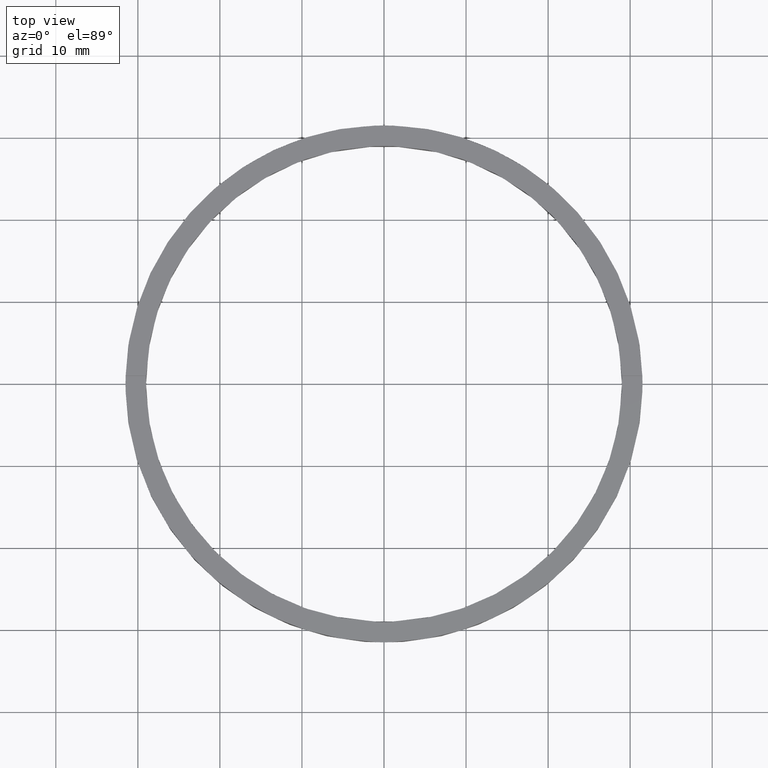
[diagram: clean part render]
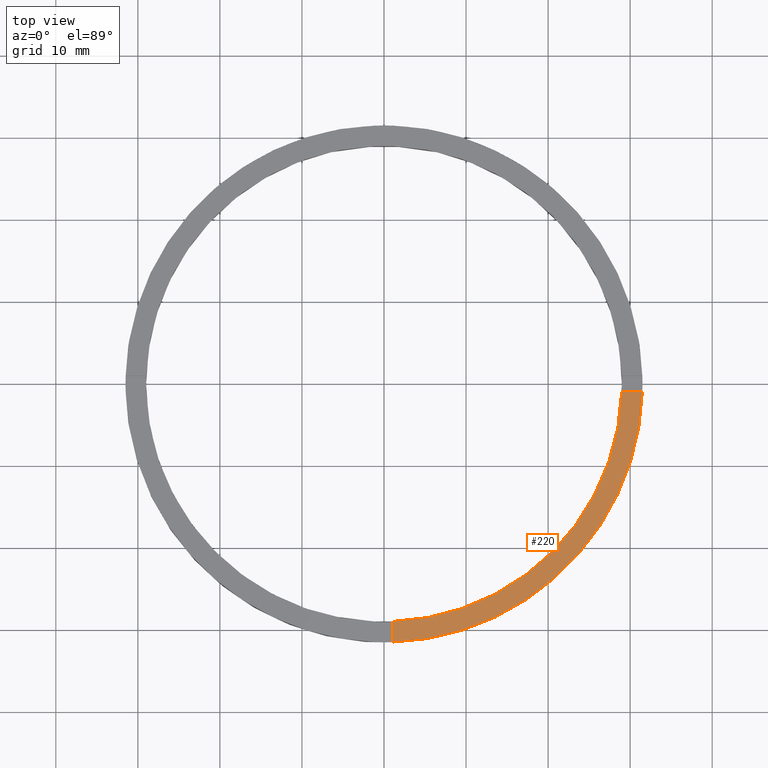
[diagram: same view with one face highlighted and labeled with its STEP entity id]
A machine part, top view. The second image highlights one B-rep face of the part: STEP entity #220.
In plain terms, the highlighted planar face has unit normal (0, 0, 1).
Its self-contained STEP definition (entity closure, byte-faithful):
#10 = AXIS2_PLACEMENT_3D ( 'NONE', #635, #280, #287 ) ;
#24 = VERTEX_POINT ( 'NONE', #733 ) ;
#40 = VERTEX_POINT ( 'NONE', #74 ) ;
#49 = DIRECTION ( 'NONE',  ( 0.000000000000000000, 0.000000000000000000, 1.000000000000000000 ) ) ;
#65 = DIRECTION ( 'NONE',  ( 1.000000000000000000, 6.505213034913022906E-17, 0.000000000000000000 ) ) ;
#74 = CARTESIAN_POINT ( 'NONE',  ( 0.9999999999998382405, -28.98275349237888321, 3.000000000000000000 ) ) ;
#86 = LINE ( 'NONE', #703, #595 ) ;
#97 = CIRCLE ( 'NONE', #263, 31.50000000000000000 ) ;
#104 = FACE_OUTER_BOUND ( 'NONE', #200, .T. ) ;
#200 = EDGE_LOOP ( 'NONE', ( #233, #467, #308, #738 ) ) ;
#208 = DIRECTION ( 'NONE',  ( 1.000000000000000000, 0.000000000000000000, 0.000000000000000000 ) ) ;
#220 = ADVANCED_FACE ( 'NONE', ( #104 ), #524, .T. ) ;
#232 = EDGE_CURVE ( 'NONE', #533, #40, #632, .T. ) ;
#233 = ORIENTED_EDGE ( 'NONE', *, *, #439, .F. ) ;
#249 = VERTEX_POINT ( 'NONE', #341 ) ;
#263 = AXIS2_PLACEMENT_3D ( 'NONE', #538, #49, #208 ) ;
#280 = DIRECTION ( 'NONE',  ( 0.000000000000000000, 0.000000000000000000, 1.000000000000000000 ) ) ;
#287 = DIRECTION ( 'NONE',  ( 1.000000000000000000, 0.000000000000000000, -0.000000000000000000 ) ) ;
#302 = AXIS2_PLACEMENT_3D ( 'NONE', #395, #682, #572 ) ;
#308 = ORIENTED_EDGE ( 'NONE', *, *, #232, .F. ) ;
#334 = CARTESIAN_POINT ( 'NONE',  ( 0.9999999999998373523, -21.50000000000017764, 3.000000000000000000 ) ) ;
#341 = CARTESIAN_POINT ( 'NONE',  ( 28.98275349237887255, -1.000000000000158540, 3.000000000000000000 ) ) ;
#395 = CARTESIAN_POINT ( 'NONE',  ( 0.000000000000000000, 0.000000000000000000, 3.000000000000000000 ) ) ;
#404 = DIRECTION ( 'NONE',  ( -1.301042606982605074E-16, 1.000000000000000000, -0.000000000000000000 ) ) ;
#439 = EDGE_CURVE ( 'NONE', #249, #24, #86, .T. ) ;
#467 = ORIENTED_EDGE ( 'NONE', *, *, #680, .F. ) ;
#468 = CARTESIAN_POINT ( 'NONE',  ( 0.9999999999998386846, -31.48412298286233479, 3.000000000000000000 ) ) ;
#524 = PLANE ( 'NONE',  #10 ) ;
#533 = VERTEX_POINT ( 'NONE', #468 ) ;
#534 = EDGE_CURVE ( 'NONE', #533, #24, #97, .T. ) ;
#538 = CARTESIAN_POINT ( 'NONE',  ( 0.000000000000000000, 0.000000000000000000, 3.000000000000000000 ) ) ;
#572 = DIRECTION ( 'NONE',  ( 1.000000000000000000, 0.000000000000000000, 0.000000000000000000 ) ) ;
#595 = VECTOR ( 'NONE', #65, 1000.000000000000000 ) ;
#616 = CIRCLE ( 'NONE', #302, 29.00000000000000000 ) ;
#627 = VECTOR ( 'NONE', #404, 1000.000000000000000 ) ;
#632 = LINE ( 'NONE', #334, #627 ) ;
#635 = CARTESIAN_POINT ( 'NONE',  ( 0.000000000000000000, 0.000000000000000000, 3.000000000000000000 ) ) ;
#680 = EDGE_CURVE ( 'NONE', #40, #249, #616, .T. ) ;
#682 = DIRECTION ( 'NONE',  ( 0.000000000000000000, 0.000000000000000000, 1.000000000000000000 ) ) ;
#703 = CARTESIAN_POINT ( 'NONE',  ( 21.49999999999999645, -1.000000000000159206, 3.000000000000000000 ) ) ;
#733 = CARTESIAN_POINT ( 'NONE',  ( 31.48412298286232414, -1.000000000000158540, 3.000000000000000000 ) ) ;
#738 = ORIENTED_EDGE ( 'NONE', *, *, #534, .T. ) ;